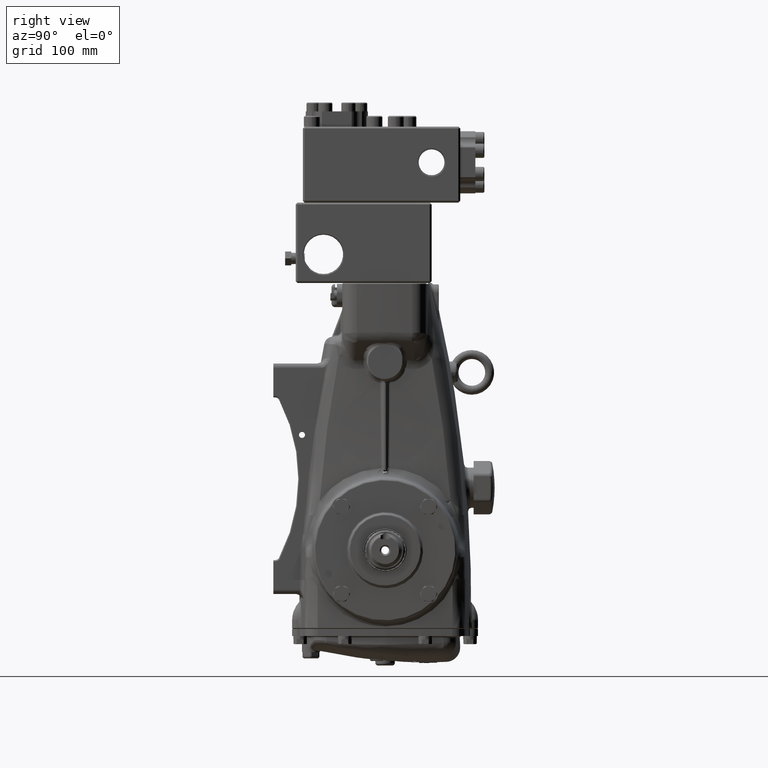
[diagram: clean part render]
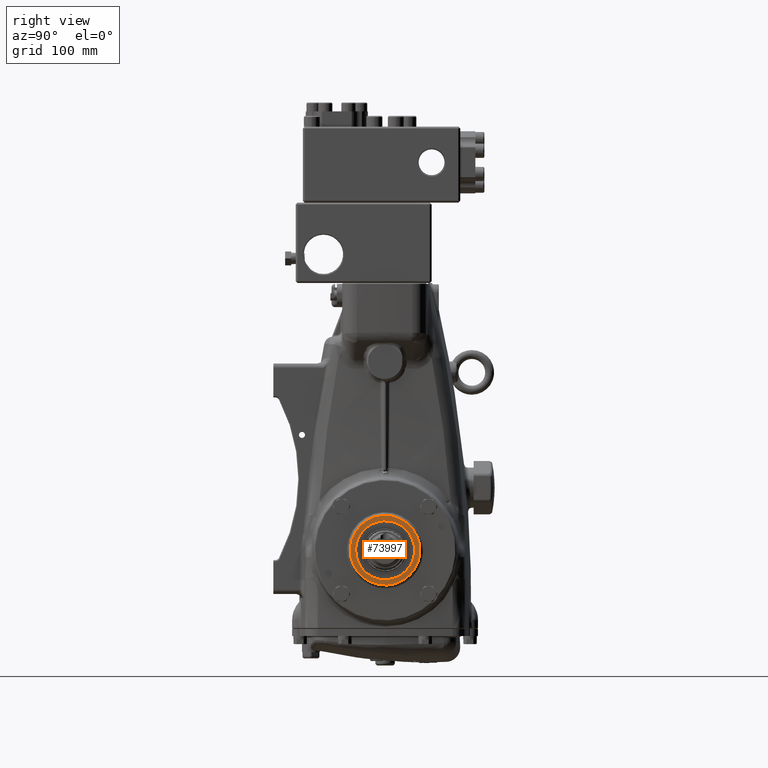
[diagram: same view with one face highlighted and labeled with its STEP entity id]
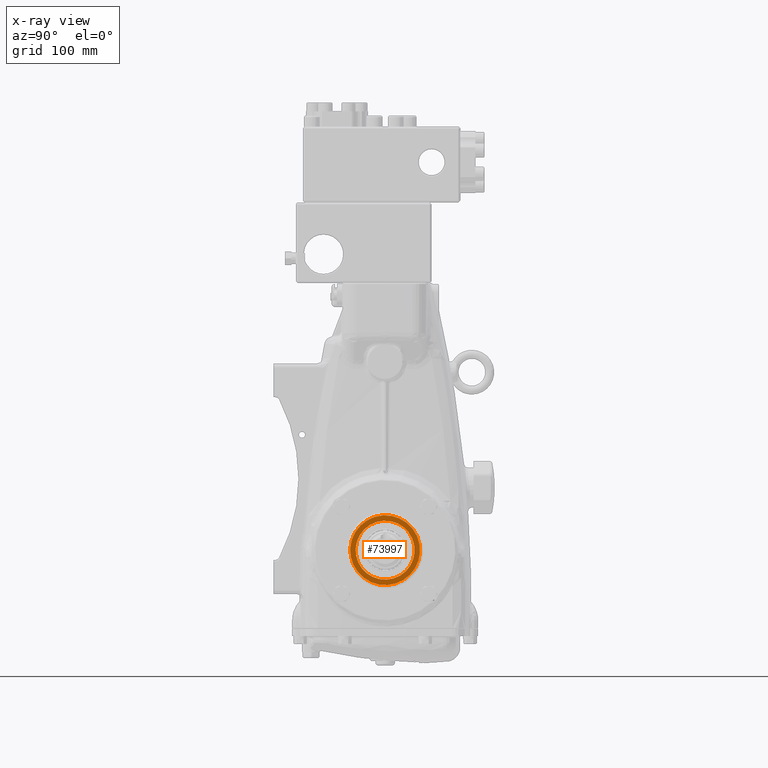
[diagram: x-ray of the same camera — body ghosted, the highlighted face saturated]
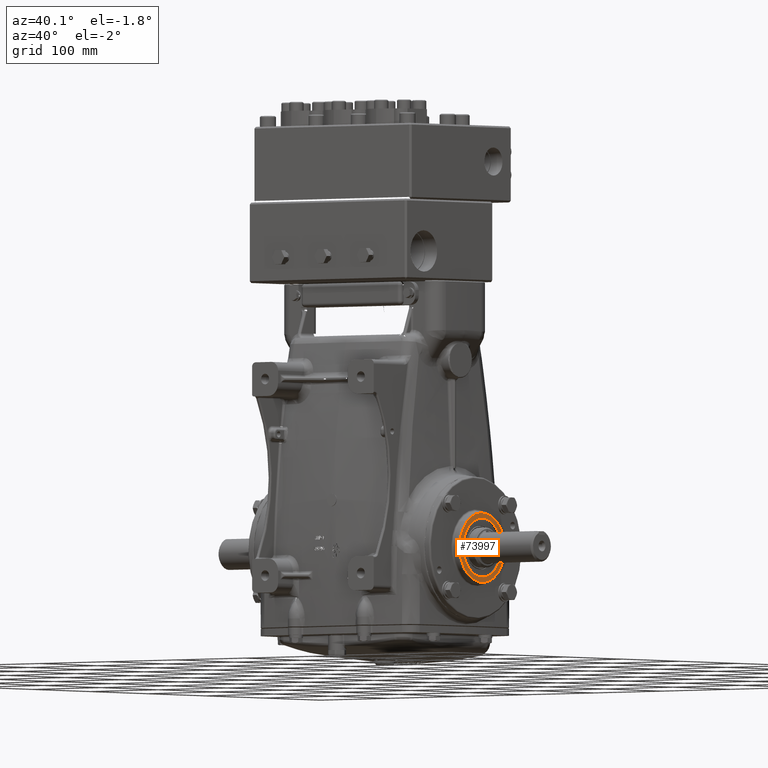
[diagram: same view with one face highlighted and labeled with its STEP entity id]
A machine part, right view. The second image highlights one B-rep face of the part: STEP entity #73997.
The next image is the same camera in x-ray: the body ghosted, the highlighted face saturated — about 0% of this face is hidden behind the body in this view.
A second angle (auxiliary view) of the same face is appended — the face is thin or edge-on in the first view.
In plain terms, the highlighted planar face has unit normal (1, 0, -0).
Its self-contained STEP definition (entity closure, byte-faithful):
#44 = CARTESIAN_POINT ( 'NONE',  ( 5.600393700787400064, 1.085715136467520159, -1.085715136467547248 ) ) ;
#2880 = DIRECTION ( 'NONE',  ( 0.0000000000000000000, 0.7071067811865386910, -0.7071067811865564545 ) ) ;
#3225 = EDGE_CURVE ( 'NONE', #97588, #66660, #111941, .T. ) ;
#3716 = CARTESIAN_POINT ( 'NONE',  ( 5.600393700787400952, -0.9186820385494400831, 0.9186820385494630647 ) ) ;
#12827 = AXIS2_PLACEMENT_3D ( 'NONE', #77947, #115314, #31472 ) ;
#12832 = CARTESIAN_POINT ( 'NONE',  ( 5.600393700787400952, 0.9186820385494403052, -0.9186820385494630647 ) ) ;
#14214 = ORIENTED_EDGE ( 'NONE', *, *, #3225, .T. ) ;
#15138 = CARTESIAN_POINT ( 'NONE',  ( 5.600393700787400064, 7.692994116735341984E-17, 2.887182751505603661E-16 ) ) ;
#17449 = CARTESIAN_POINT ( 'NONE',  ( 5.600393700787400064, 7.692994116735339519E-17, 2.887182751505604154E-16 ) ) ;
#20175 = EDGE_CURVE ( 'NONE', #106723, #106263, #91966, .T. ) ;
#23039 = AXIS2_PLACEMENT_3D ( 'NONE', #71595, #108953, #25138 ) ;
#25138 = DIRECTION ( 'NONE',  ( 0.0000000000000000000, -0.7071067811865385799, 0.7071067811865563435 ) ) ;
#26645 = FACE_OUTER_BOUND ( 'NONE', #67826, .T. ) ;
#29933 = AXIS2_PLACEMENT_3D ( 'NONE', #49348, #86657, #2880 ) ;
#31472 = DIRECTION ( 'NONE',  ( 0.0000000000000000000, 0.7071067811865386910, -0.7071067811865564545 ) ) ;
#44233 = ORIENTED_EDGE ( 'NONE', *, *, #20175, .T. ) ;
#49348 = CARTESIAN_POINT ( 'NONE',  ( 5.600393700787400952, 1.659981964250728274E-16, 1.996500198928387891E-16 ) ) ;
#51731 = ORIENTED_EDGE ( 'NONE', *, *, #119931, .T. ) ;
#52422 = DIRECTION ( 'NONE',  ( 1.000000000000000000, 1.132765510522192525E-16, -1.050649484868739380E-17 ) ) ;
#54747 = DIRECTION ( 'NONE',  ( 1.000000000000000000, 1.132765510522191786E-16, -1.050649484868733834E-17 ) ) ;
#63943 = FACE_BOUND ( 'NONE', #67117, .T. ) ;
#64637 = AXIS2_PLACEMENT_3D ( 'NONE', #15138, #52422, #89768 ) ;
#65575 = CIRCLE ( 'NONE', #12827, 1.299212598425196985 ) ;
#66660 = VERTEX_POINT ( 'NONE', #3716 ) ;
#67117 = EDGE_LOOP ( 'NONE', ( #14214, #74065 ) ) ;
#67826 = EDGE_LOOP ( 'NONE', ( #44233, #51731 ) ) ;
#71595 = CARTESIAN_POINT ( 'NONE',  ( 5.600393700787400064, 7.692994116735341984E-17, 2.887182751505603661E-16 ) ) ;
#71816 = CARTESIAN_POINT ( 'NONE',  ( 5.600393700787400064, -1.085715136467520159, 1.085715136467547470 ) ) ;
#73997 = ADVANCED_FACE ( 'NONE', ( #26645, #63943 ), #101288, .T. ) ;
#74065 = ORIENTED_EDGE ( 'NONE', *, *, #105724, .T. ) ;
#75781 = CIRCLE ( 'NONE', #23039, 1.535433070866142113 ) ;
#77947 = CARTESIAN_POINT ( 'NONE',  ( 5.600393700787400952, 1.659981964250728274E-16, 1.996500198928387891E-16 ) ) ;
#86657 = DIRECTION ( 'NONE',  ( -1.000000000000000000, -1.132765510522192525E-16, 1.050649484868739380E-17 ) ) ;
#89768 = DIRECTION ( 'NONE',  ( 0.0000000000000000000, -0.7071067811865385799, 0.7071067811865563435 ) ) ;
#91966 = CIRCLE ( 'NONE', #64637, 1.535433070866142113 ) ;
#92083 = DIRECTION ( 'NONE',  ( 8.752783115245576924E-17, -0.7071067811865386910, 0.7071067811865563435 ) ) ;
#97588 = VERTEX_POINT ( 'NONE', #12832 ) ;
#99510 = AXIS2_PLACEMENT_3D ( 'NONE', #17449, #54747, #92083 ) ;
#101288 = PLANE ( 'NONE',  #99510 ) ;
#105724 = EDGE_CURVE ( 'NONE', #66660, #97588, #65575, .T. ) ;
#106263 = VERTEX_POINT ( 'NONE', #44 ) ;
#106723 = VERTEX_POINT ( 'NONE', #71816 ) ;
#108953 = DIRECTION ( 'NONE',  ( 1.000000000000000000, 1.132765510522192525E-16, -1.050649484868739380E-17 ) ) ;
#111941 = CIRCLE ( 'NONE', #29933, 1.299212598425196985 ) ;
#115314 = DIRECTION ( 'NONE',  ( -1.000000000000000000, -1.132765510522192525E-16, 1.050649484868739380E-17 ) ) ;
#119931 = EDGE_CURVE ( 'NONE', #106263, #106723, #75781, .T. ) ;